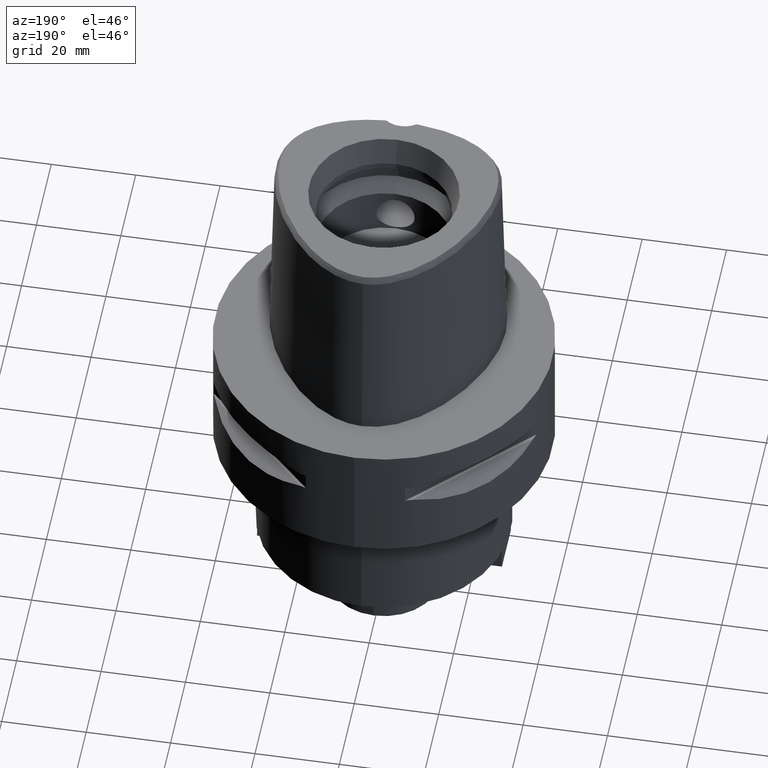
[diagram: clean part render]
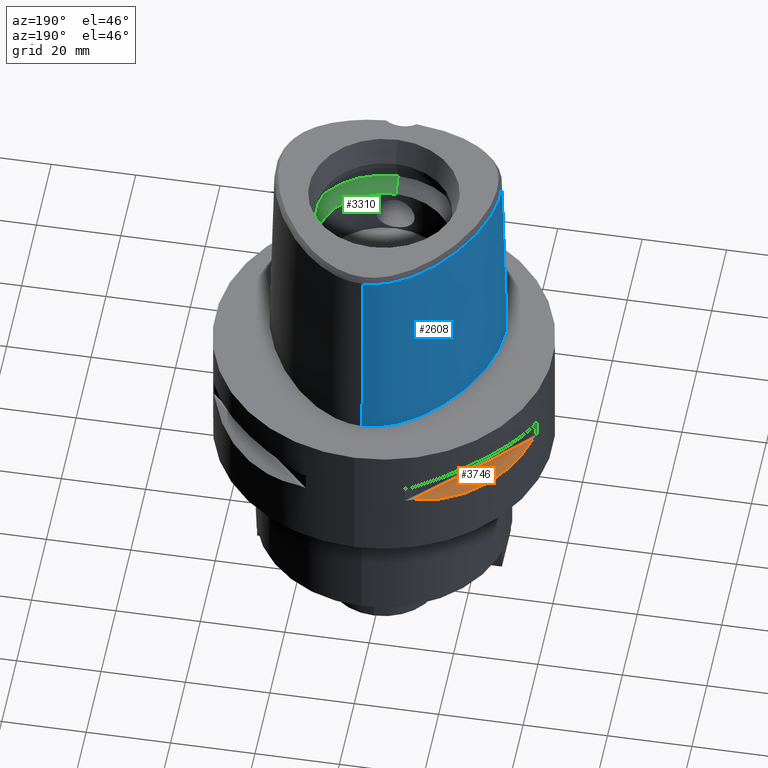
[diagram: same view with three faces highlighted in distinct colors, each labeled with its STEP entity id]
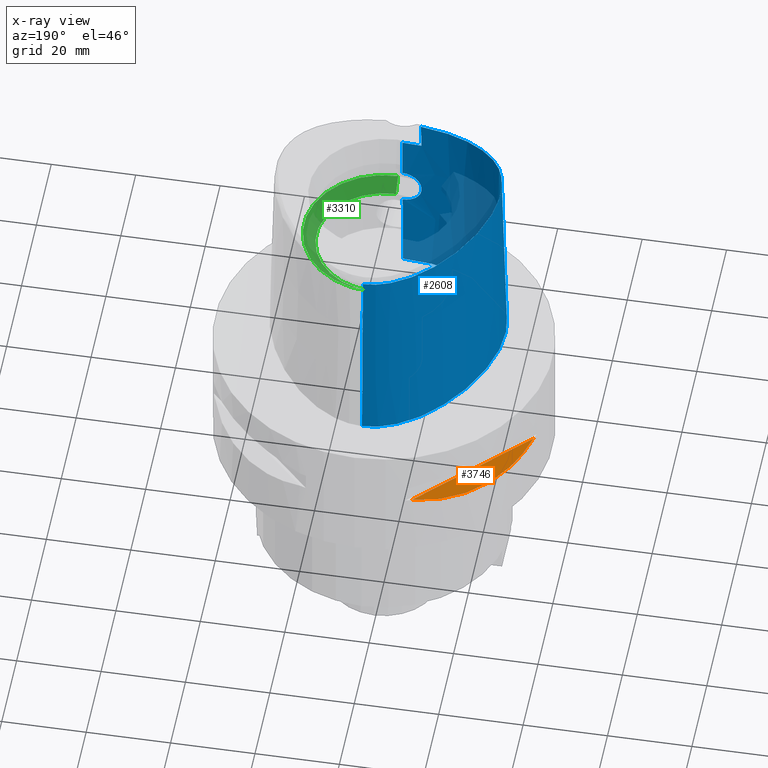
[diagram: x-ray of the same camera — body ghosted, the three highlighted faces saturated]
A machine part, auxiliary view with three faces highlighted in distinct colors.
The next image is the same camera in x-ray (body ghosted, the three faces saturated) — at least one of them is partly hidden behind the body in this view.
Their STEP definitions:

[orange] entity #3746 — the highlighted planar face has unit normal (0.3536, -0.3536, -0.866).
#416=CARTESIAN_POINT('',(-1.323717311056E1,3.774622163927E1,-1.405E1));
#417=CARTESIAN_POINT('',(-1.626143876435E1,3.668564587161E1,-1.485167303901E1));
#418=CARTESIAN_POINT('',(-2.171906657626E1,3.397359084062E1,-1.597254843317E1));
#419=CARTESIAN_POINT('',(-2.850324251697E1,2.850324251697E1,-1.650891631180E1));
#420=CARTESIAN_POINT('',(-3.397359084062E1,2.171906657626E1,-1.597254843317E1));
#421=CARTESIAN_POINT('',(-3.668564587161E1,1.626143876435E1,-1.485167303901E1));
#422=CARTESIAN_POINT('',(-3.774622163927E1,1.323717311056E1,-1.405E1));
#1596=DIRECTION('',(-7.071067811865E-1,-7.071067811865E-1,0.E0));
#1597=VECTOR('',#1596,3.466102883017E1);
#1598=CARTESIAN_POINT('',(-1.323717311056E1,3.774622163927E1,-1.405E1));
#1599=LINE('',#1598,#1597);
#1710=CARTESIAN_POINT('',(-1.323717311056E1,3.774622163927E1,-1.405E1));
#1711=VERTEX_POINT('',#1710);
#1712=VERTEX_POINT('',#422);
#3737=CARTESIAN_POINT('',(-4.316936690458E1,7.814027845252E0,-1.405E1));
#3738=DIRECTION('',(3.535533905933E-1,-3.535533905933E-1,-8.660254037844E-1));
#3739=DIRECTION('',(-6.123724356958E-1,6.123724356958E-1,-5.E-1));
#3740=AXIS2_PLACEMENT_3D('',#3737,#3738,#3739);
#3741=PLANE('',#3740);
#3742=ORIENTED_EDGE('',*,*,#2648,.F.);
#3743=ORIENTED_EDGE('',*,*,#3730,.T.);
#3744=EDGE_LOOP('',(#3742,#3743));
#3745=FACE_OUTER_BOUND('',#3744,.F.);
#423=B_SPLINE_CURVE_WITH_KNOTS('',3,(#416,#417,#418,#419,#420,#421,#422),
.UNSPECIFIED.,.F.,.F.,(4,1,1,1,4),(0.E0,2.5E-1,5.E-1,7.5E-1,1.E0),
.UNSPECIFIED.);
#2648=EDGE_CURVE('',#1711,#1712,#423,.T.);
#3730=EDGE_CURVE('',#1711,#1712,#1599,.T.);
#3746=ADVANCED_FACE('',(#3745),#3741,.F.);

[blue] entity #2608 — the highlighted face is a freeform B-spline surface patch.
#202=CARTESIAN_POINT('',(-4.472216406693E0,-2.420008985674E1,4.652070903171E1));
#203=CARTESIAN_POINT('',(-5.503190001927E0,-2.410139905198E1,4.652067891887E1));
#204=CARTESIAN_POINT('',(-7.445357668335E0,-2.384395021709E1,4.652073782991E1));
#205=CARTESIAN_POINT('',(-9.935417258426E0,-2.334901294205E1,4.652070745415E1));
#206=CARTESIAN_POINT('',(-1.212548420313E1,-2.277323581484E1,4.652071768091E1));
#207=CARTESIAN_POINT('',(-1.409692574710E1,-2.212346221456E1,4.652071885692E1));
#208=CARTESIAN_POINT('',(-1.590051589537E1,-2.139933429848E1,4.652071967532E1));
#209=CARTESIAN_POINT('',(-1.756144115567E1,-2.059882784733E1,4.652071621770E1));
#210=CARTESIAN_POINT('',(-1.910048836921E1,-1.971448798703E1,4.652072030783E1));
#211=CARTESIAN_POINT('',(-2.054196795164E1,-1.872363562392E1,4.652072035330E1));
#212=CARTESIAN_POINT('',(-2.183072202682E1,-1.765270089701E1,4.652071533024E1));
#213=CARTESIAN_POINT('',(-2.291063551985E1,-1.656414933520E1,4.652071975412E1));
#214=CARTESIAN_POINT('',(-2.380538493028E1,-1.546780207676E1,4.652071204281E1));
#215=CARTESIAN_POINT('',(-2.454699289689E1,-1.435075519920E1,4.652073046057E1));
#216=CARTESIAN_POINT('',(-2.516715833582E1,-1.317314986992E1,4.652069805662E1));
#217=CARTESIAN_POINT('',(-2.569231299510E1,-1.187855111428E1,4.652072218442E1));
#218=CARTESIAN_POINT('',(-2.611811315357E1,-1.044263406064E1,4.652071653700E1));
#219=CARTESIAN_POINT('',(-2.643184331775E1,-8.829632405051E0,4.652072244915E1));
#220=CARTESIAN_POINT('',(-2.660377111760E1,-7.106546678198E0,4.652071411699E1));
#221=CARTESIAN_POINT('',(-2.663296322915E1,-5.340127903710E0,4.652071938868E1));
#222=CARTESIAN_POINT('',(-2.652786718403E1,-3.519875759225E0,4.652071342531E1));
#223=CARTESIAN_POINT('',(-2.628729444329E1,-1.620070036829E0,4.652071930425E1));
#224=CARTESIAN_POINT('',(-2.590191233512E1,3.816879042275E-1,4.652071700418E1));
#225=CARTESIAN_POINT('',(-2.535125456853E1,2.523708755760E0,4.652071298329E1));
#226=CARTESIAN_POINT('',(-2.459101607603E1,4.874103185555E0,4.652072616018E1));
#227=CARTESIAN_POINT('',(-2.355841855806E1,7.493623084531E0,4.652068738113E1));
#228=CARTESIAN_POINT('',(-2.214987859753E1,1.045878478632E1,4.652072475331E1));
#229=CARTESIAN_POINT('',(-2.039418248091E1,1.353815268076E1,4.652071609153E1));
#230=CARTESIAN_POINT('',(-1.851707060679E1,1.631983306529E1,4.652070426193E1));
#231=CARTESIAN_POINT('',(-1.673076984686E1,1.860624566483E1,4.652070997599E1));
#232=CARTESIAN_POINT('',(-1.505069735311E1,2.049452299207E1,4.652072279845E1));
#233=CARTESIAN_POINT('',(-1.346382916793E1,2.207104710709E1,4.652071156352E1));
#234=CARTESIAN_POINT('',(-1.193469667313E1,2.341630720292E1,4.652072768223E1));
#235=CARTESIAN_POINT('',(-1.040675075343E1,2.459752838155E1,4.652071053823E1));
#236=CARTESIAN_POINT('',(-8.874095577770E0,2.562375006414E1,4.652072407927E1));
#237=CARTESIAN_POINT('',(-7.317301969183E0,2.650644566714E1,4.652071476902E1));
#238=CARTESIAN_POINT('',(-5.742362672839E0,2.723547265641E1,4.652071829602E1));
#239=CARTESIAN_POINT('',(-4.181458250665E0,2.779099149271E1,4.652071723104E1));
#240=CARTESIAN_POINT('',(-2.715705614718E0,2.815916045426E1,4.652072144517E1));
#241=CARTESIAN_POINT('',(-1.321645859074E0,2.836809704241E1,4.652066830028E1));
#242=CARTESIAN_POINT('',(-4.410759299422E-1,2.841206021535E1,4.652071719450E1));
#243=CARTESIAN_POINT('',(-1.216260473557E-11,2.841206021535E1,
4.652071719451E1));
#255=CARTESIAN_POINT('',(-4.472216406693E0,-2.420008985674E1,4.652070903171E1));
#256=CARTESIAN_POINT('',(-4.487210721186E0,-2.421685468864E1,4.579601479726E1));
#257=CARTESIAN_POINT('',(-4.516393775219E0,-2.424985511903E1,4.434671166025E1));
#258=CARTESIAN_POINT('',(-4.559961265872E0,-2.430022578469E1,4.217314625867E1));
#259=CARTESIAN_POINT('',(-4.588866160228E0,-2.433440435351E1,4.072435065553E1));
#260=CARTESIAN_POINT('',(-4.602925679451E0,-2.435121855889E1,4.E1));
#265=DIRECTION('',(1.388127436484E-9,-2.499239851702E-2,-9.996876412242E-1));
#266=VECTOR('',#265,1.045326522127E1);
#267=CARTESIAN_POINT('',(-1.451045074373E-8,-2.457504746727E1,
4.000000005214E1));
#268=LINE('',#267,#266);
#272=CARTESIAN_POINT('',(1.351075727151E-14,-2.483629963748E1,2.955E1));
#273=CARTESIAN_POINT('',(-3.966835984640E-1,-2.483629963748E1,2.955E1));
#274=CARTESIAN_POINT('',(-1.190418809771E0,-2.482887723659E1,2.944561742728E1));
#275=CARTESIAN_POINT('',(-2.300741017989E0,-2.479906243005E1,2.898605904871E1));
#276=CARTESIAN_POINT('',(-3.255789090203E0,-2.476057038817E1,2.825311794410E1));
#277=CARTESIAN_POINT('',(-3.987636326581E0,-2.472742176594E1,2.729796279280E1));
#278=CARTESIAN_POINT('',(-4.446358689828E0,-2.471345406062E1,2.618734946090E1));
#279=CARTESIAN_POINT('',(-4.602009607481E0,-2.472805014992E1,2.499856857259E1));
#280=CARTESIAN_POINT('',(-4.445601745923E0,-2.477322141726E1,2.381050642308E1));
#281=CARTESIAN_POINT('',(-3.987821795884E0,-2.484269847339E1,2.270284549258E1));
#282=CARTESIAN_POINT('',(-3.257169514981E0,-2.492348668177E1,2.174816226309E1));
#283=CARTESIAN_POINT('',(-2.300561363557E0,-2.499862191626E1,2.101354524447E1));
#284=CARTESIAN_POINT('',(-1.188130274278E0,-2.505127109848E1,2.055374615128E1));
#285=CARTESIAN_POINT('',(-3.956083647813E-1,-2.506378435149E1,2.045E1));
#286=CARTESIAN_POINT('',(-2.263615543289E-12,-2.506378435149E1,2.045E1));
#291=DIRECTION('',(-7.796123609439E-13,-2.499051295404E-2,-9.996876883619E-1));
#292=VECTOR('',#291,2.045638876829E1);
#293=CARTESIAN_POINT('',(-2.263615543289E-12,-2.506378435149E1,2.045E1));
#294=LINE('',#293,#292);
#358=CARTESIAN_POINT('',(4.150874539794E-11,2.957499999999E1,
1.088758712816E-13));
#359=CARTESIAN_POINT('',(-4.638164448012E-1,2.957499999999E1,
1.088758712816E-13));
#360=CARTESIAN_POINT('',(-1.410850718016E0,2.952902146816E1,
-5.052946771131E-14));
#361=CARTESIAN_POINT('',(-2.883655032481E0,2.931228560343E1,
1.353933006722E-14));
#362=CARTESIAN_POINT('',(-4.426627163545E0,2.893208071406E1,0.E0));
#363=CARTESIAN_POINT('',(-6.049154392441E0,2.836726648281E1,0.E0));
#364=CARTESIAN_POINT('',(-7.761537812028E0,2.759082579924E1,0.E0));
#365=CARTESIAN_POINT('',(-9.569857225665E0,2.657070258362E1,0.E0));
#366=CARTESIAN_POINT('',(-1.147438992791E1,2.527155800703E1,0.E0));
#367=CARTESIAN_POINT('',(-1.346593717634E1,2.365849032536E1,0.E0));
#368=CARTESIAN_POINT('',(-1.552126666491E1,2.170410428657E1,0.E0));
#369=CARTESIAN_POINT('',(-1.759995736461E1,1.939768070235E1,0.E0));
#370=CARTESIAN_POINT('',(-1.964233253222E1,1.675753018593E1,0.E0));
#371=CARTESIAN_POINT('',(-2.157509754225E1,1.383752572308E1,0.E0));
#372=CARTESIAN_POINT('',(-2.331611758430E1,1.073673744767E1,0.E0));
#373=CARTESIAN_POINT('',(-2.478320447143E1,7.607002331550E0,0.E0));
#374=CARTESIAN_POINT('',(-2.594735447195E1,4.554014363197E0,0.E0));
#375=CARTESIAN_POINT('',(-2.680648598444E1,1.660217498728E0,0.E0));
#376=CARTESIAN_POINT('',(-2.738097082383E1,-1.024310234966E0,0.E0));
#377=CARTESIAN_POINT('',(-2.770318656547E1,-3.479062889651E0,0.E0));
#378=CARTESIAN_POINT('',(-2.780877008059E1,-5.703091401496E0,0.E0));
#379=CARTESIAN_POINT('',(-2.773144522691E1,-7.709806855740E0,0.E0));
#380=CARTESIAN_POINT('',(-2.749972769728E1,-9.518401797713E0,0.E0));
#381=CARTESIAN_POINT('',(-2.713677167303E1,-1.114992061985E1,0.E0));
#382=CARTESIAN_POINT('',(-2.665684504343E1,-1.263118239016E1,0.E0));
#383=CARTESIAN_POINT('',(-2.607701356622E1,-1.396736842415E1,0.E0));
#384=CARTESIAN_POINT('',(-2.539313031375E1,-1.519910518181E1,0.E0));
#385=CARTESIAN_POINT('',(-2.457691319715E1,-1.637864995996E1,0.E0));
#386=CARTESIAN_POINT('',(-2.359382469479E1,-1.754163071958E1,0.E0));
#387=CARTESIAN_POINT('',(-2.242900785060E1,-1.867976950641E1,0.E0));
#388=CARTESIAN_POINT('',(-2.105518674326E1,-1.979399013524E1,0.E0));
#389=CARTESIAN_POINT('',(-1.944328869802E1,-2.087700749950E1,0.E0));
#390=CARTESIAN_POINT('',(-1.756163725760E1,-2.191645275900E1,0.E0));
#391=CARTESIAN_POINT('',(-1.538022871299E1,-2.289224369605E1,0.E0));
#392=CARTESIAN_POINT('',(-1.287818704661E1,-2.377571674426E1,0.E0));
#393=CARTESIAN_POINT('',(-1.004796888620E1,-2.453094412637E1,0.E0));
#394=CARTESIAN_POINT('',(-6.915125319542E0,-2.511588417376E1,
1.434009262048E-14));
#395=CARTESIAN_POINT('',(-3.526216737657E0,-2.548899742521E1,
-5.351795424488E-14));
#396=CARTESIAN_POINT('',(-1.193097080382E0,-2.5575E1,1.153151648244E-13));
#397=CARTESIAN_POINT('',(-1.821166908732E-11,-2.5575E1,1.153151648244E-13));
#1047=DIRECTION('',(1.153348253895E-12,2.499051293969E-2,-9.996876883622E-1));
#1048=VECTOR('',#1047,4.653525069487E1);
#1049=CARTESIAN_POINT('',(-1.216260473557E-11,2.841206021535E1,
4.652071719451E1));
#1050=LINE('',#1049,#1048);
#1064=CARTESIAN_POINT('',(-1.451045074373E-8,-2.457504746727E1,
4.000000005214E1));
#1065=CARTESIAN_POINT('',(-5.124223382063E-1,-2.457504746706E1,
4.000000005214E1));
#1066=CARTESIAN_POINT('',(-1.536621750938E0,-2.455890147190E1,
3.999999997567E1));
#1067=CARTESIAN_POINT('',(-3.071957665953E0,-2.448406991543E1,
4.000000000695E1));
#1068=CARTESIAN_POINT('',(-4.092928315870E0,-2.440134250294E1,4.E1));
#1069=CARTESIAN_POINT('',(-4.602925679451E0,-2.435121855889E1,4.E1));
#1685=CARTESIAN_POINT('',(-4.602965076336E0,-2.435127131301E1,4.E1));
#1686=VERTEX_POINT('',#1685);
#1687=VERTEX_POINT('',#255);
#1688=CARTESIAN_POINT('',(-1.216260473557E-11,2.841206021535E1,
4.652071719451E1));
#1689=VERTEX_POINT('',#1688);
#1690=VERTEX_POINT('',#358);
#1691=VERTEX_POINT('',#397);
#1692=VERTEX_POINT('',#1064);
#1693=CARTESIAN_POINT('',(1.351075727145E-14,-2.483629963748E1,2.955E1));
#1694=VERTEX_POINT('',#1693);
#1695=VERTEX_POINT('',#286);
#2483=CARTESIAN_POINT('',(9.115101685830E-1,2.956851176004E1,
-9.304144791878E-1));
#2484=CARTESIAN_POINT('',(8.850788443552E-1,2.916624661380E1,1.519676982673E1));
#2485=CARTESIAN_POINT('',(8.586475201274E-1,2.876398146756E1,3.132395413266E1));
#2486=CARTESIAN_POINT('',(8.322161958996E-1,2.836171632132E1,4.745113843858E1));
#2487=CARTESIAN_POINT('',(6.077626423788E-1,2.958843421373E1,
-9.304144791878E-1));
#2488=CARTESIAN_POINT('',(5.902542486786E-1,2.918556700315E1,1.519676982673E1));
#2489=CARTESIAN_POINT('',(5.727458549783E-1,2.878269979258E1,3.132395413266E1));
#2490=CARTESIAN_POINT('',(5.552374612780E-1,2.837983258201E1,4.745113843858E1));
#2491=CARTESIAN_POINT('',(-7.475778414334E-1,2.963225228734E1,
-9.304144791878E-1));
#2492=CARTESIAN_POINT('',(-7.257524944413E-1,2.922811259545E1,
1.519676982673E1));
#2493=CARTESIAN_POINT('',(-7.039271474492E-1,2.882397290355E1,
3.132395413266E1));
#2494=CARTESIAN_POINT('',(-6.821018004572E-1,2.841983321165E1,
4.745113843858E1));
#2495=CARTESIAN_POINT('',(-3.154109046518E0,2.936302093381E1,
-9.304144791878E-1));
#2496=CARTESIAN_POINT('',(-3.067023398400E0,2.896669974784E1,1.519676982673E1));
#2497=CARTESIAN_POINT('',(-2.979937750282E0,2.857037856187E1,3.132395413266E1));
#2498=CARTESIAN_POINT('',(-2.892852102165E0,2.817405737590E1,4.745113843858E1));
#2499=CARTESIAN_POINT('',(-6.271543170536E0,2.837237220527E1,
-9.304144791878E-1));
#2500=CARTESIAN_POINT('',(-6.114741924317E0,2.799897533469E1,1.519676982673E1));
#2501=CARTESIAN_POINT('',(-5.957940678099E0,2.762557846411E1,3.132395413266E1));
#2502=CARTESIAN_POINT('',(-5.801139431880E0,2.725218159353E1,4.745113843858E1));
#2503=CARTESIAN_POINT('',(-9.316733117298E0,2.681182150645E1,
-9.304144791878E-1));
#2504=CARTESIAN_POINT('',(-9.105791465430E0,2.646675914468E1,1.519676982673E1));
#2505=CARTESIAN_POINT('',(-8.894849813562E0,2.612169678291E1,3.132395413266E1));
#2506=CARTESIAN_POINT('',(-8.683908161694E0,2.577663442115E1,4.745113843858E1));
#2507=CARTESIAN_POINT('',(-1.323332856297E1,2.406149249909E1,
-9.304144791878E-1));
#2508=CARTESIAN_POINT('',(-1.296695409944E1,2.375598709830E1,1.519676982673E1));
#2509=CARTESIAN_POINT('',(-1.270057963592E1,2.345048169751E1,3.132395413266E1));
#2510=CARTESIAN_POINT('',(-1.243420517239E1,2.314497629673E1,4.745113843858E1));
#2511=CARTESIAN_POINT('',(-1.777103258633E1,1.953703864451E1,
-9.304144791878E-1));
#2512=CARTESIAN_POINT('',(-1.745811262618E1,1.927961880633E1,1.519676982673E1));
#2513=CARTESIAN_POINT('',(-1.714519266604E1,1.902219896815E1,3.132395413266E1));
#2514=CARTESIAN_POINT('',(-1.683227270589E1,1.876477912997E1,4.745113843858E1));
#2515=CARTESIAN_POINT('',(-2.235908247773E1,1.290902243054E1,
-9.304144791878E-1));
#2516=CARTESIAN_POINT('',(-2.200846693019E1,1.270659196787E1,1.519676982673E1));
#2517=CARTESIAN_POINT('',(-2.165785138265E1,1.250416150519E1,3.132395413266E1));
#2518=CARTESIAN_POINT('',(-2.130723583512E1,1.230173104252E1,4.745113843858E1));
#2519=CARTESIAN_POINT('',(-2.523075706188E1,6.836210430591E0,
-9.304144791878E-1));
#2520=CARTESIAN_POINT('',(-2.485610465361E1,6.683875467028E0,1.519676982673E1));
#2521=CARTESIAN_POINT('',(-2.448145224535E1,6.531540503465E0,3.132395413266E1));
#2522=CARTESIAN_POINT('',(-2.410679983708E1,6.379205539902E0,4.745113843858E1));
#2523=CARTESIAN_POINT('',(-2.679474625779E1,1.906447387348E0,
-9.304144791878E-1));
#2524=CARTESIAN_POINT('',(-2.640443226300E1,1.802817673317E0,1.519676982673E1));
#2525=CARTESIAN_POINT('',(-2.601411826820E1,1.699187959286E0,3.132395413266E1));
#2526=CARTESIAN_POINT('',(-2.562380427341E1,1.595558245254E0,4.745113843858E1));
#2527=CARTESIAN_POINT('',(-2.756041892247E1,-1.762105663753E0,
-9.304144791878E-1));
#2528=CARTESIAN_POINT('',(-2.716099298881E1,-1.823107492030E0,
1.519676982673E1));
#2529=CARTESIAN_POINT('',(-2.676156705516E1,-1.884109320306E0,
3.132395413266E1));
#2530=CARTESIAN_POINT('',(-2.636214112151E1,-1.945111148583E0,
4.745113843858E1));
#2531=CARTESIAN_POINT('',(-2.787808443106E1,-5.337383714067E0,
-9.304144791878E-1));
#2532=CARTESIAN_POINT('',(-2.747379251509E1,-5.347524336909E0,
1.519676982673E1));
#2533=CARTESIAN_POINT('',(-2.706950059912E1,-5.357664959751E0,
3.132395413266E1));
#2534=CARTESIAN_POINT('',(-2.666520868315E1,-5.367805582592E0,
4.745113843858E1));
#2535=CARTESIAN_POINT('',(-2.770696775908E1,-8.754869100841E0,
-9.304144791878E-1));
#2536=CARTESIAN_POINT('',(-2.730517726777E1,-8.703986977921E0,
1.519676982673E1));
#2537=CARTESIAN_POINT('',(-2.690338677646E1,-8.653104855001E0,
3.132395413266E1));
#2538=CARTESIAN_POINT('',(-2.650159628515E1,-8.602222732080E0,
4.745113843858E1));
#2539=CARTESIAN_POINT('',(-2.712297207987E1,-1.141745865542E1,
-9.304144791878E-1));
#2540=CARTESIAN_POINT('',(-2.673375370633E1,-1.130662581568E1,
1.519676982673E1));
#2541=CARTESIAN_POINT('',(-2.634453533279E1,-1.119579297594E1,
3.132395413266E1));
#2542=CARTESIAN_POINT('',(-2.595531695925E1,-1.108496013620E1,
4.745113843858E1));
#2543=CARTESIAN_POINT('',(-2.637046814545E1,-1.340391019822E1,
-9.304144791878E-1));
#2544=CARTESIAN_POINT('',(-2.600056140893E1,-1.324168030404E1,
1.519676982673E1));
#2545=CARTESIAN_POINT('',(-2.563065467241E1,-1.307945040987E1,
3.132395413266E1));
#2546=CARTESIAN_POINT('',(-2.526074793589E1,-1.291722051569E1,
4.745113843858E1));
#2547=CARTESIAN_POINT('',(-2.565830880169E1,-1.481383149363E1,
-9.304144791878E-1));
#2548=CARTESIAN_POINT('',(-2.530843714808E1,-1.4611833E1,1.519676982673E1));
#2549=CARTESIAN_POINT('',(-2.495856549447E1,-1.440983450636E1,
3.132395413266E1));
#2550=CARTESIAN_POINT('',(-2.460869384086E1,-1.420783601273E1,
4.745113843858E1));
#2551=CARTESIAN_POINT('',(-2.479336081454E1,-1.613554022456E1,
-9.304144791878E-1));
#2552=CARTESIAN_POINT('',(-2.446791223479E1,-1.589630654066E1,
1.519676982673E1));
#2553=CARTESIAN_POINT('',(-2.414246365504E1,-1.565707285675E1,
3.132395413266E1));
#2554=CARTESIAN_POINT('',(-2.381701507529E1,-1.541783917285E1,
4.745113843858E1));
#2555=CARTESIAN_POINT('',(-2.344929528159E1,-1.778045351952E1,
-9.304144791878E-1));
#2556=CARTESIAN_POINT('',(-2.315870205039E1,-1.749879694149E1,
1.519676982673E1));
#2557=CARTESIAN_POINT('',(-2.286810881919E1,-1.721714036346E1,
3.132395413266E1));
#2558=CARTESIAN_POINT('',(-2.257751558799E1,-1.693548378543E1,
4.745113843858E1));
#2559=CARTESIAN_POINT('',(-2.143542293252E1,-1.961750339137E1,
-9.304144791878E-1));
#2560=CARTESIAN_POINT('',(-2.119046239197E1,-1.929498367017E1,
1.519676982673E1));
#2561=CARTESIAN_POINT('',(-2.094550185142E1,-1.897246394898E1,
3.132395413266E1));
#2562=CARTESIAN_POINT('',(-2.070054131087E1,-1.864994422779E1,
4.745113843858E1));
#2563=CARTESIAN_POINT('',(-1.856135208399E1,-2.147443746696E1,
-9.304144791878E-1));
#2564=CARTESIAN_POINT('',(-1.836798846919E1,-2.111924012302E1,
1.519676982673E1));
#2565=CARTESIAN_POINT('',(-1.817462485438E1,-2.076404277907E1,
3.132395413266E1));
#2566=CARTESIAN_POINT('',(-1.798126123957E1,-2.040884543513E1,
4.745113843858E1));
#2567=CARTESIAN_POINT('',(-1.530623779602E1,-2.298697010193E1,
-9.304144791878E-1));
#2568=CARTESIAN_POINT('',(-1.515935282126E1,-2.261055604350E1,
1.519676982673E1));
#2569=CARTESIAN_POINT('',(-1.501246784650E1,-2.223414198506E1,
3.132395413266E1));
#2570=CARTESIAN_POINT('',(-1.486558287173E1,-2.185772792663E1,
4.745113843858E1));
#2571=CARTESIAN_POINT('',(-1.174634101486E1,-2.415815461100E1,
-9.304144791878E-1));
#2572=CARTESIAN_POINT('',(-1.164093423980E1,-2.376831843706E1,
1.519676982673E1));
#2573=CARTESIAN_POINT('',(-1.153552746475E1,-2.337848226313E1,
3.132395413266E1));
#2574=CARTESIAN_POINT('',(-1.143012068969E1,-2.298864608919E1,
4.745113843858E1));
#2575=CARTESIAN_POINT('',(-6.695047936512E0,-2.526858194627E1,
-9.304144791878E-1));
#2576=CARTESIAN_POINT('',(-6.639625076614E0,-2.486795321094E1,
1.519676982673E1));
#2577=CARTESIAN_POINT('',(-6.584202216716E0,-2.446732447561E1,
3.132395413266E1));
#2578=CARTESIAN_POINT('',(-6.528779356817E0,-2.406669574028E1,
4.745113843858E1));
#2579=CARTESIAN_POINT('',(-2.393548608052E0,-2.562160468843E1,
-9.304144791878E-1));
#2580=CARTESIAN_POINT('',(-2.373852718313E0,-2.521827345061E1,
1.519676982673E1));
#2581=CARTESIAN_POINT('',(-2.354156828574E0,-2.481494221280E1,
3.132395413266E1));
#2582=CARTESIAN_POINT('',(-2.334460938834E0,-2.441161097498E1,
4.745113843858E1));
#2583=CARTESIAN_POINT('',(5.689259951233E-1,-2.559577895916E1,
-9.304144791878E-1));
#2584=CARTESIAN_POINT('',(5.642418783911E-1,-2.519264542560E1,
1.519676982673E1));
#2585=CARTESIAN_POINT('',(5.595577616588E-1,-2.478951189203E1,
3.132395413266E1));
#2586=CARTESIAN_POINT('',(5.548736449266E-1,-2.438637835847E1,
4.745113843858E1));
#2587=CARTESIAN_POINT('',(8.532670503993E-1,-2.559082387536E1,
-9.304144791878E-1));
#2588=CARTESIAN_POINT('',(8.462420188361E-1,-2.518772735895E1,
1.519676982673E1));
#2589=CARTESIAN_POINT('',(8.392169872728E-1,-2.478463084253E1,
3.132395413266E1));
#2590=CARTESIAN_POINT('',(8.321919557095E-1,-2.438153432611E1,
4.745113843858E1));
#2591=B_SPLINE_SURFACE_WITH_KNOTS('',3,3,((#2483,#2484,#2485,#2486),(#2487,
#2488,#2489,#2490),(#2491,#2492,#2493,#2494),(#2495,#2496,#2497,#2498),(#2499,
#2500,#2501,#2502),(#2503,#2504,#2505,#2506),(#2507,#2508,#2509,#2510),(#2511,
#2512,#2513,#2514),(#2515,#2516,#2517,#2518),(#2519,#2520,#2521,#2522),(#2523,
#2524,#2525,#2526),(#2527,#2528,#2529,#2530),(#2531,#2532,#2533,#2534),(#2535,
#2536,#2537,#2538),(#2539,#2540,#2541,#2542),(#2543,#2544,#2545,#2546),(#2547,
#2548,#2549,#2550),(#2551,#2552,#2553,#2554),(#2555,#2556,#2557,#2558),(#2559,
#2560,#2561,#2562),(#2563,#2564,#2565,#2566),(#2567,#2568,#2569,#2570),(#2571,
#2572,#2573,#2574),(#2575,#2576,#2577,#2578),(#2579,#2580,#2581,#2582),(#2583,
#2584,#2585,#2586),(#2587,#2588,#2589,#2590)),.UNSPECIFIED.,.F.,.F.,.F.,(4,1,1,
1,1,1,1,1,1,1,1,1,1,1,1,1,1,1,1,1,1,1,1,1,4),(4,4),(-1.204223939043E-2,0.E0,
4.166666666718E-2,8.333333333381E-2,1.250000000004E-1,1.666666666671E-1,
2.500000000003E-1,3.333333333336E-1,4.166666666669E-1,4.583333333335E-1,
5.000000000001E-1,5.416666666668E-1,5.833333333334E-1,6.25E-1,6.458333333333E-1,
6.666666666667E-1,6.875E-1,7.083333333333E-1,7.499999999999E-1,
7.916666666666E-1,8.333333333332E-1,8.749999999998E-1,9.166666666665E-1,1.E0,
1.008851807893E0),(5.285500863372E-9,9.999997304394E-1),.UNSPECIFIED.);
#2593=ORIENTED_EDGE('',*,*,#2592,.F.);
#2595=ORIENTED_EDGE('',*,*,#2594,.F.);
#2596=ORIENTED_EDGE('',*,*,#2476,.F.);
#2597=ORIENTED_EDGE('',*,*,#1905,.T.);
#2599=ORIENTED_EDGE('',*,*,#2598,.F.);
#2601=ORIENTED_EDGE('',*,*,#2600,.T.);
#2603=ORIENTED_EDGE('',*,*,#2602,.T.);
#2605=ORIENTED_EDGE('',*,*,#2604,.T.);
#2606=EDGE_LOOP('',(#2593,#2595,#2596,#2597,#2599,#2601,#2603,#2605));
#2607=FACE_OUTER_BOUND('',#2606,.F.);
#244=B_SPLINE_CURVE_WITH_KNOTS('',3,(#202,#203,#204,#205,#206,#207,#208,#209,
#210,#211,#212,#213,#214,#215,#216,#217,#218,#219,#220,#221,#222,#223,#224,#225,
#226,#227,#228,#229,#230,#231,#232,#233,#234,#235,#236,#237,#238,#239,#240,#241,
#242,#243),.UNSPECIFIED.,.F.,.F.,(4,1,1,1,1,1,1,1,1,1,1,1,1,1,1,1,1,1,1,1,1,1,1,
1,1,1,1,1,1,1,1,1,1,1,1,1,1,1,1,4),(0.E0,2.564102564103E-2,5.128205128205E-2,
7.692307692308E-2,1.025641025641E-1,1.282051282051E-1,1.538461538462E-1,
1.794871794872E-1,2.051282051282E-1,2.307692307692E-1,2.564102564103E-1,
2.820512820513E-1,3.076923076923E-1,3.333333333333E-1,3.589743589744E-1,
3.846153846154E-1,4.102564102564E-1,4.358974358974E-1,4.615384615385E-1,
4.871794871795E-1,5.128205128205E-1,5.384615384615E-1,5.641025641026E-1,
5.897435897436E-1,6.153846153846E-1,6.410256410256E-1,6.666666666667E-1,
6.923076923077E-1,7.179487179487E-1,7.435897435897E-1,7.692307692308E-1,
7.948717948718E-1,8.205128205128E-1,8.461538461538E-1,8.717948717949E-1,
8.974358974359E-1,9.230769230769E-1,9.487179487179E-1,9.743589743590E-1,1.E0),
.UNSPECIFIED.);
#261=B_SPLINE_CURVE_WITH_KNOTS('',3,(#255,#256,#257,#258,#259,#260),
.UNSPECIFIED.,.F.,.F.,(4,1,1,4),(0.E0,3.333333333333E-1,6.666666666667E-1,1.E0),
.UNSPECIFIED.);
#287=B_SPLINE_CURVE_WITH_KNOTS('',3,(#272,#273,#274,#275,#276,#277,#278,#279,
#280,#281,#282,#283,#284,#285,#286),.UNSPECIFIED.,.F.,.F.,(4,1,1,1,1,1,1,1,1,1,
1,1,4),(0.E0,8.333333333333E-2,1.666666666667E-1,2.5E-1,3.333333333333E-1,
4.166666666667E-1,5.E-1,5.833333333333E-1,6.666666666667E-1,7.5E-1,
8.333333333333E-1,9.166666666667E-1,1.E0),.UNSPECIFIED.);
#398=B_SPLINE_CURVE_WITH_KNOTS('',3,(#358,#359,#360,#361,#362,#363,#364,#365,
#366,#367,#368,#369,#370,#371,#372,#373,#374,#375,#376,#377,#378,#379,#380,#381,
#382,#383,#384,#385,#386,#387,#388,#389,#390,#391,#392,#393,#394,#395,#396,
#397),.UNSPECIFIED.,.F.,.F.,(4,1,1,1,1,1,1,1,1,1,1,1,1,1,1,1,1,1,1,1,1,1,1,1,1,
1,1,1,1,1,1,1,1,1,1,1,1,4),(0.E0,2.702702702703E-2,5.405405405405E-2,
8.108108108108E-2,1.081081081081E-1,1.351351351351E-1,1.621621621622E-1,
1.891891891892E-1,2.162162162162E-1,2.432432432432E-1,2.702702702703E-1,
2.972972972973E-1,3.243243243243E-1,3.513513513514E-1,3.783783783784E-1,
4.054054054054E-1,4.324324324324E-1,4.594594594595E-1,4.864864864865E-1,
5.135135135135E-1,5.405405405405E-1,5.675675675676E-1,5.945945945946E-1,
6.216216216216E-1,6.486486486486E-1,6.756756756757E-1,7.027027027027E-1,
7.297297297297E-1,7.567567567568E-1,7.837837837838E-1,8.108108108108E-1,
8.378378378378E-1,8.648648648649E-1,8.918918918919E-1,9.189189189189E-1,
9.459459459459E-1,9.729729729730E-1,1.E0),.UNSPECIFIED.);
#1070=B_SPLINE_CURVE_WITH_KNOTS('',3,(#1064,#1065,#1066,#1067,#1068,#1069),
.UNSPECIFIED.,.F.,.F.,(4,1,1,4),(0.E0,3.333333333333E-1,6.666666666667E-1,1.E0),
.UNSPECIFIED.);
#1905=EDGE_CURVE('',#1687,#1686,#261,.T.);
#2476=EDGE_CURVE('',#1687,#1689,#244,.T.);
#2592=EDGE_CURVE('',#1690,#1691,#398,.T.);
#2594=EDGE_CURVE('',#1689,#1690,#1050,.T.);
#2598=EDGE_CURVE('',#1692,#1686,#1070,.T.);
#2600=EDGE_CURVE('',#1692,#1694,#268,.T.);
#2602=EDGE_CURVE('',#1694,#1695,#287,.T.);
#2604=EDGE_CURVE('',#1695,#1691,#294,.T.);
#2608=ADVANCED_FACE('',(#2607),#2591,.T.);

[green] entity #3310 — the highlighted conical surface has half-angle 45 deg.
#1082=DIRECTION('',(0.E0,-7.071067811865E-1,7.071067811865E-1));
#1083=VECTOR('',#1082,4.242640687119E0);
#1084=CARTESIAN_POINT('',(0.E0,-1.6E1,3.15E1));
#1085=LINE('',#1084,#1083);
#1105=CARTESIAN_POINT('',(0.E0,0.E0,3.15E1));
#1106=DIRECTION('',(0.E0,0.E0,1.E0));
#1107=DIRECTION('',(0.E0,-1.E0,0.E0));
#1108=AXIS2_PLACEMENT_3D('',#1105,#1106,#1107);
#1113=DIRECTION('',(0.E0,7.071067811865E-1,7.071067811865E-1));
#1114=VECTOR('',#1113,4.242640687119E0);
#1115=CARTESIAN_POINT('',(0.E0,1.6E1,3.15E1));
#1116=LINE('',#1115,#1114);
#1120=CARTESIAN_POINT('',(0.E0,0.E0,3.45E1));
#1121=DIRECTION('',(0.E0,0.E0,-1.E0));
#1122=DIRECTION('',(0.E0,1.E0,0.E0));
#1123=AXIS2_PLACEMENT_3D('',#1120,#1121,#1122);
#1830=CARTESIAN_POINT('',(0.E0,1.6E1,3.15E1));
#1831=VERTEX_POINT('',#1830);
#1832=CARTESIAN_POINT('',(0.E0,-1.6E1,3.15E1));
#1833=VERTEX_POINT('',#1832);
#1841=CARTESIAN_POINT('',(0.E0,-1.9E1,3.45E1));
#1842=VERTEX_POINT('',#1841);
#1843=CARTESIAN_POINT('',(0.E0,1.9E1,3.45E1));
#1844=VERTEX_POINT('',#1843);
#3298=CARTESIAN_POINT('',(0.E0,0.E0,3.3E1));
#3299=DIRECTION('',(0.E0,0.E0,1.E0));
#3300=DIRECTION('',(0.E0,1.E0,0.E0));
#3301=AXIS2_PLACEMENT_3D('',#3298,#3299,#3300);
#3302=CONICAL_SURFACE('',#3301,1.75E1,4.5E1);
#3303=ORIENTED_EDGE('',*,*,#3288,.F.);
#3304=ORIENTED_EDGE('',*,*,#3063,.T.);
#3305=ORIENTED_EDGE('',*,*,#3292,.T.);
#3307=ORIENTED_EDGE('',*,*,#3306,.T.);
#3308=EDGE_LOOP('',(#3303,#3304,#3305,#3307));
#3309=FACE_OUTER_BOUND('',#3308,.F.);
#1109=CIRCLE('',#1108,1.6E1);
#1124=CIRCLE('',#1123,1.9E1);
#3063=EDGE_CURVE('',#1833,#1831,#1109,.T.);
#3288=EDGE_CURVE('',#1833,#1842,#1085,.T.);
#3292=EDGE_CURVE('',#1831,#1844,#1116,.T.);
#3306=EDGE_CURVE('',#1844,#1842,#1124,.T.);
#3310=ADVANCED_FACE('',(#3309),#3302,.F.);